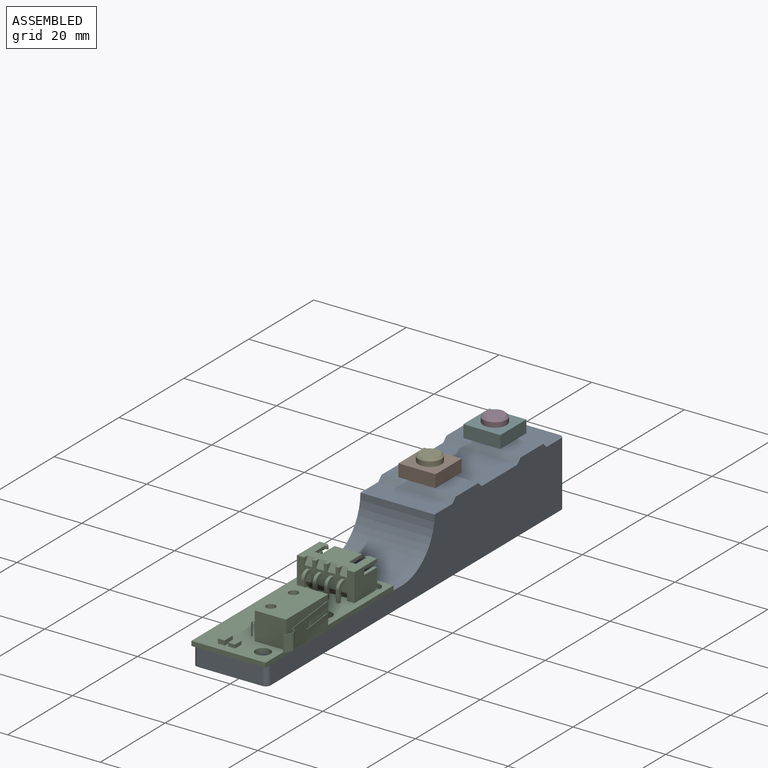
[diagram: assembled view]
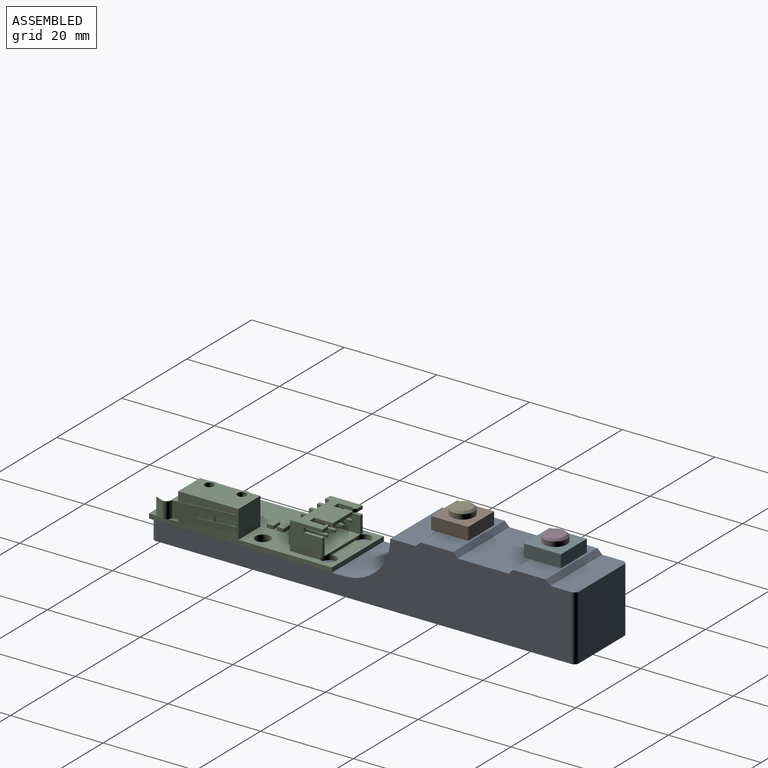
[diagram: assembled view, second angle]
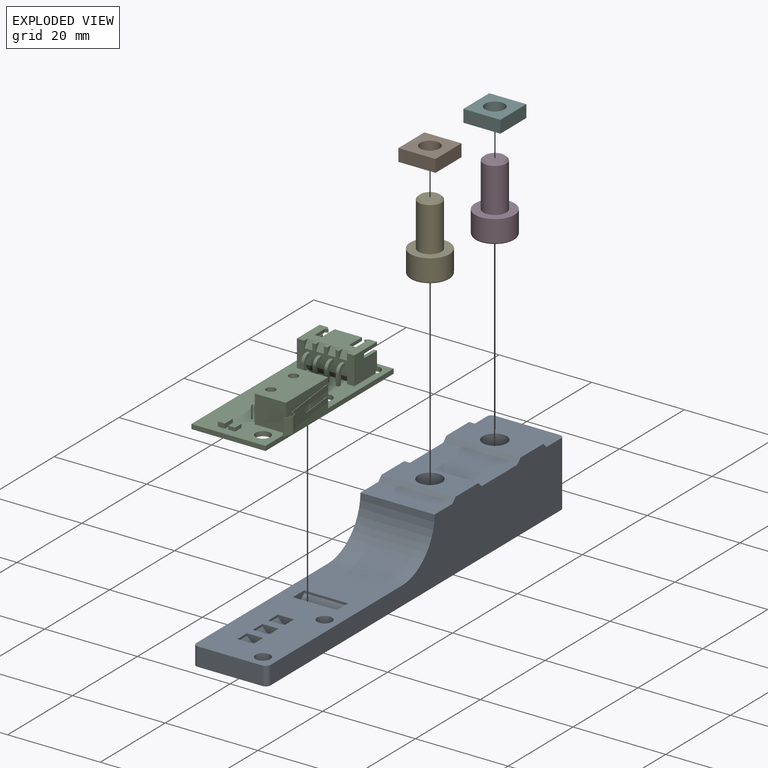
[diagram: exploded view]
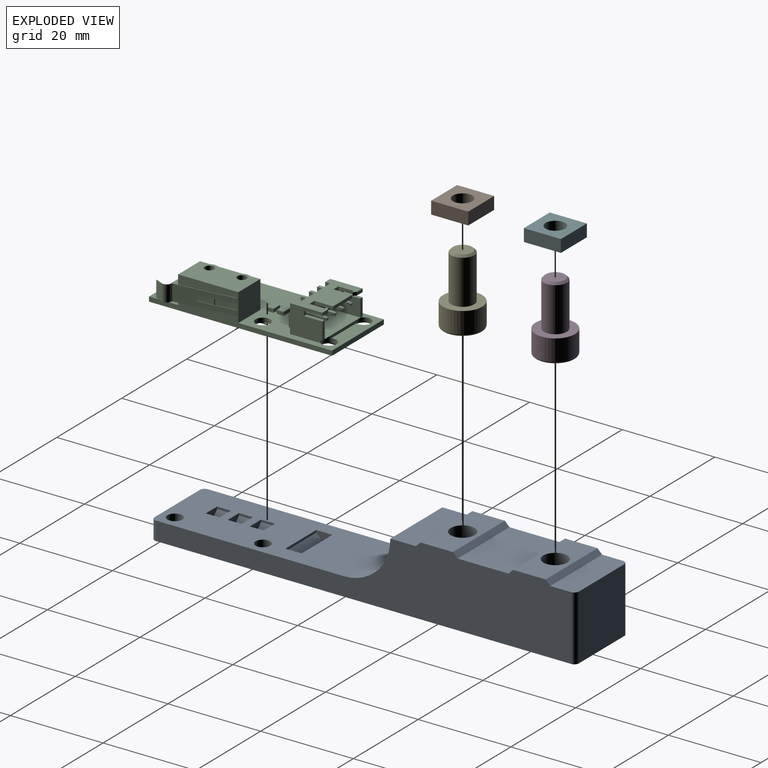
[diagram: exploded view, second angle]
ASSEMBLY  parts=6 mates=5
PART A: 58 faces, bbox 16x91.6x15 mm
  f0: plane 41.6x16mm, normal (0,0,1), area 584.3mm2, adj f3,f13,f14,f23,f24,f25,f26,f30
  f1: plane 16x1mm, normal (0,-0.71,0.71), area 22.6mm2, adj f2,f12,f13,f14
  f2: plane 16x5.5mm, normal (0,0,1), area 88mm2, adj f1,f13,f14,f57
  f3: plane 14x4mm, normal (0,-1,0), area 56mm2, adj f0,f4,f54,f56
  f4: plane 91.6x16mm, normal (0,0,-1), area 1321.4mm2, adj f3,f5,f13,f14,f19,f21,f23,f24
  f5: plane 14x14mm, normal (0,1,0), area 196mm2, adj f4,f6,f53,f55
  f6: plane 16x5.5mm, normal (0,0,1), area 87.6mm2, adj f5,f7,f13,f14,f53,f55
  f7: plane 16x1mm, normal (0,0.71,0.71), area 22.6mm2, adj f6,f8,f13,f14
  f8: plane 16x7mm, normal (0,0,1), area 90.8mm2, adj f7,f9,f13,f14,f17
  f9: plane 16x1mm, normal (0,-0.71,0.71), area 22.6mm2, adj f8,f10,f13,f14
  f10: plane 16x11mm, normal (0,0,1), area 176mm2, adj f9,f11,f13,f14
  f11: plane 16x1mm, normal (0,0.71,0.71), area 22.6mm2, adj f10,f12,f13,f14
  f12: plane 16x7mm, normal (0,0,1), area 90.8mm2, adj f1,f11,f13,f14,f15
  f13: plane 89.6x15mm, normal (1,0,0), area 785.9mm2, adj f0,f1,f2,f4,f6,f7,f8,f9
  f14: plane 89.6x15mm, normal (-1,0,0), area 785.9mm2, adj f0,f1,f2,f4,f6,f7,f8,f9
  f15: cylinder r=2.6mm len=5.2mm, axis (0,0,1), area 78.4mm2, adj f12,f16
  f16: plane 5.2x5.2mm, normal (0,0,1), area 21.2mm2, adj f15
  f17: cylinder r=2.6mm len=5.2mm, axis (0,0,1), area 78.4mm2, adj f8,f18
  f18: plane 5.2x5.2mm, normal (0,0,1), area 21.2mm2, adj f17
  f19: cylinder r=4.5mm len=10mm, axis (0,0,-1), area 282.7mm2, adj f4,f20
  f20: plane 9x9mm, normal (0,0,-1), area 63.6mm2, adj f19
  f21: cylinder r=4.5mm len=10mm, axis (0,0,-1), area 282.7mm2, adj f4,f22
  f22: plane 9x9mm, normal (0,0,-1), area 63.6mm2, adj f21
  f23: cylinder r=1.6mm len=4mm, axis (0,0,1), area 40.2mm2, adj f0,f4
  f24: cylinder r=1.6mm len=4mm, axis (0,0,1), area 40.2mm2, adj f0,f4
  f25: plane 3x0.5mm, normal (-1,0,0), area 1.5mm2, adj f0,f29,f30,f31
  f26: plane 3x0.5mm, normal (1,0,0), area 1.5mm2, adj f0,f27,f30,f31
  f27: plane 3x1mm, normal (0.71,0,0.71), area 4.2mm2, adj f26,f28,f30,f31
  f28: plane 3x1.5mm, normal (0,0,1), area 4.5mm2, adj f27,f29,f30,f31
  f29: plane 3x1mm, normal (-0.71,0,0.71), area 4.2mm2, adj f25,f28,f30,f31
  f30: plane 3.5x1.5mm, normal (0,-1,0), area 4.2mm2, adj f0,f25,f26,f27,f28,f29
  f31: plane 3.5x1.5mm, normal (0,1,0), area 4.2mm2, adj f0,f25,f26,f27,f28,f29
  f32: plane 3x0.5mm, normal (-1,0,0), area 1.5mm2, adj f0,f36,f37,f38
  f33: plane 3x0.5mm, normal (1,0,0), area 1.5mm2, adj f0,f34,f37,f38
  f34: plane 3x1mm, normal (0.71,0,0.71), area 4.2mm2, adj f33,f35,f37,f38
  f35: plane 3x1.5mm, normal (0,0,1), area 4.5mm2, adj f34,f36,f37,f38
  f36: plane 3x1mm, normal (-0.71,0,0.71), area 4.2mm2, adj f32,f35,f37,f38
  f37: plane 3.5x1.5mm, normal (0,-1,0), area 4.2mm2, adj f0,f32,f33,f34,f35,f36
  f38: plane 3.5x1.5mm, normal (0,1,0), area 4.2mm2, adj f0,f32,f33,f34,f35,f36
  f39: plane 3x0.5mm, normal (-1,0,0), area 1.5mm2, adj f0,f43,f44,f45
  f40: plane 3x0.5mm, normal (1,0,0), area 1.5mm2, adj f0,f41,f44,f45
  f41: plane 3x1mm, normal (0.71,0,0.71), area 4.2mm2, adj f40,f42,f44,f45
  f42: plane 3x1.5mm, normal (0,0,1), area 4.5mm2, adj f41,f43,f44,f45
  f43: plane 3x1mm, normal (-0.71,0,0.71), area 4.2mm2, adj f39,f42,f44,f45
  f44: plane 3.5x1.5mm, normal (0,-1,0), area 4.2mm2, adj f0,f39,f40,f41,f42,f43
  f45: plane 3.5x1.5mm, normal (0,1,0), area 4.2mm2, adj f0,f39,f40,f41,f42,f43
  f46: plane 9.5x0.5mm, normal (0,-1,0), area 4.8mm2, adj f0,f50,f51,f52
  f47: plane 9.5x0.5mm, normal (0,1,0), area 4.8mm2, adj f0,f48,f51,f52
  f48: plane 9.5x1.5mm, normal (0,0.71,0.71), area 20.2mm2, adj f47,f49,f51,f52
  f49: plane 9.5x0.5mm, normal (0,0,1), area 4.8mm2, adj f48,f50,f51,f52
  f50: plane 9.5x1.5mm, normal (0,-0.71,0.71), area 20.2mm2, adj f46,f49,f51,f52
  f51: plane 3.5x2mm, normal (1,0,0), area 4.7mm2, adj f0,f46,f47,f48,f49,f50
  f52: plane 3.5x2mm, normal (-1,0,0), area 4.7mm2, adj f0,f46,f47,f48,f49,f50
  f53: cylinder r=1mm len=14mm, axis (0,0,1), area 22mm2, adj f4,f5,f6,f14
  f54: cylinder r=1mm len=4mm, axis (0,0,-1), area 6.3mm2, adj f0,f3,f4,f14
  f55: cylinder r=1mm len=14mm, axis (0,0,-1), area 22mm2, adj f4,f5,f6,f13
  f56: cylinder r=1mm len=4mm, axis (0,0,1), area 6.3mm2, adj f0,f3,f4,f13
  f57: cylinder r=10mm len=16mm, axis (1,0,0), area 251.3mm2, adj f0,f2,f13,f14
PART B: 7 faces, bbox 8x8x2.7 mm
  f0: plane 8x2.7mm, normal (0,-1,0), area 21.6mm2, adj f1,f4,f5,f6
  f1: plane 8x2.7mm, normal (1,0,0), area 21.6mm2, adj f0,f2,f5,f6
  f2: plane 8x2.7mm, normal (0,1,0), area 21.6mm2, adj f1,f4,f5,f6
  f3: cylinder r=2.1mm len=4.2mm, axis (0,0,-1), area 35.6mm2, adj f5,f6
  f4: plane 8x2.7mm, normal (-1,0,0), area 21.6mm2, adj f0,f2,f5,f6
  f5: plane 8x8mm, normal (0,0,1), area 50.1mm2, adj f0,f1,f2,f3,f4
  f6: plane 8x8mm, normal (0,0,-1), area 50.1mm2, adj f0,f1,f2,f3,f4
PART C: 229 faces, bbox 39.5x18.6x8 mm
  f0: plane 3x1.73mm, normal (-1,0,0), area 0.4mm2, adj f2,f3,f17,f23,f24,f25,f26,f191
  f1: plane 3x1.73mm, normal (1,0,0), area 0.4mm2, adj f2,f3,f17,f23,f24,f25,f26,f191
  f2: plane 2.5x0.35mm, normal (0,1,0), area 0.9mm2, adj f0,f1,f24,f191
  f3: plane 2.5x0.35mm, normal (0,-1,0), area 0.9mm2, adj f0,f1,f25,f191
  f4: plane 2.5x0.35mm, normal (0,1,0), area 0.9mm2, adj f6,f7,f27,f191
  f5: plane 2.5x0.35mm, normal (0,-1,0), area 0.9mm2, adj f6,f7,f28,f191
  f6: plane 3x1.73mm, normal (1,0,0), area 0.4mm2, adj f4,f5,f18,f20,f27,f28,f29,f191
  f7: plane 3x1.73mm, normal (-1,0,0), area 0.4mm2, adj f4,f5,f18,f20,f27,f28,f29,f191
  f8: plane 2.5x0.35mm, normal (0,1,0), area 0.9mm2, adj f10,f11,f31,f191
  f9: plane 2.5x0.35mm, normal (0,-1,0), area 0.9mm2, adj f10,f11,f32,f191
  f10: plane 3x1.73mm, normal (1,0,0), area 0.4mm2, adj f8,f9,f19,f30,f31,f32,f33,f191
  f11: plane 3x1.73mm, normal (-1,0,0), area 0.4mm2, adj f8,f9,f19,f30,f31,f32,f33,f191
  f12: cylinder r=1mm len=6mm, axis (0,0,1), area 37.7mm2, adj f16,f208
  f13: cylinder r=1mm len=6mm, axis (0,0,1), area 37.7mm2, adj f16,f207
  f14: cylinder r=1.6mm len=6mm, axis (0,0,1), area 10.3mm2, adj f16,f17,f20,f191
  f15: cylinder r=1.6mm len=6mm, axis (0,0,1), area 10.3mm2, adj f16,f19,f20,f191
  f16: plane 13x6.98mm, normal (0,0,-1), area 82mm2, adj f12,f13,f14,f15,f17,f19,f20,f21
  f17: plane 6x2.18mm, normal (0,-1,0), area 13.1mm2, adj f0,f1,f14,f16,f21,f23,f26,f191
  f18: plane 1.23x0.35mm, normal (0,0,1), area 0.4mm2, adj f6,f7,f20,f27
  f19: plane 6x2.18mm, normal (0,-1,0), area 13.1mm2, adj f10,f11,f15,f16,f22,f30,f33,f191
  f20: plane 6x5.36mm, normal (0,-1,0), area 32.1mm2, adj f6,f7,f14,f15,f16,f18,f29,f191
  f21: plane 6.75x6mm, normal (1,0,0), area 40.5mm2, adj f16,f17,f174,f191
  f22: plane 6.75x6mm, normal (-1,0,0), area 40.5mm2, adj f16,f19,f174,f191
  f23: plane 1.23x0.35mm, normal (0,0,1), area 0.4mm2, adj f0,f1,f17,f24
  f24: cylinder r=0.4mm len=0.4mm, axis (1,0,0), area 0.2mm2, adj f0,f1,f2,f23
  f25: cylinder r=0.5mm len=0.5mm, axis (1,0,0), area 0.3mm2, adj f0,f1,f3,f26
  f26: plane 1.23x0.35mm, normal (0,0,-1), area 0.4mm2, adj f0,f1,f17,f25
  f27: cylinder r=0.4mm len=0.4mm, axis (1,0,0), area 0.2mm2, adj f4,f6,f7,f18
  f28: cylinder r=0.5mm len=0.5mm, axis (1,0,0), area 0.3mm2, adj f5,f6,f7,f29
  f29: plane 1.23x0.35mm, normal (0,0,-1), area 0.4mm2, adj f6,f7,f20,f28
  f30: plane 1.23x0.35mm, normal (0,0,1), area 0.4mm2, adj f10,f11,f19,f31
  f31: cylinder r=0.4mm len=0.4mm, axis (1,0,0), area 0.2mm2, adj f8,f10,f11,f30
  f32: cylinder r=0.5mm len=0.5mm, axis (1,0,0), area 0.3mm2, adj f9,f10,f11,f33
  f33: plane 1.23x0.35mm, normal (0,0,-1), area 0.4mm2, adj f10,f11,f19,f32
  f34: plane 2.5x0.4mm, normal (1,0,0), area 1mm2, adj f35,f37,f38,f174
  f35: plane 2.5x1mm, normal (0,1,0), area 2.5mm2, adj f34,f36,f37,f38
  f36: plane 2.5x0.4mm, normal (-1,0,0), area 1mm2, adj f35,f37,f38,f174
  f37: plane 1x0.4mm, normal (0,0,-1), area 0.4mm2, adj f34,f35,f36,f174
  f38: plane 1x0.4mm, normal (0,0,1), area 0.4mm2, adj f34,f35,f36,f174
  f39: plane 2x1.5mm, normal (0,0,-1), area 3mm2, adj f40,f41,f42,f43
  f40: plane 1.5x0.76mm, normal (0,1,0), area 1.1mm2, adj f39,f41,f43,f191
  f41: plane 2x0.76mm, normal (1,0,0), area 1.5mm2, adj f39,f40,f42,f191
  f42: plane 1.5x0.76mm, normal (0,-1,0), area 1.1mm2, adj f39,f41,f43,f191
  f43: plane 2x0.76mm, normal (-1,0,0), area 1.5mm2, adj f39,f40,f42,f191
  f44: plane 0.64x0.57mm, normal (0.17,0,0.98), area 0.3mm2, adj f45,f46,f48,f52
  f45: plane 0.64x0.57mm, normal (0.17,0.98,0), area 0.3mm2, adj f44,f47,f48,f49
  f46: plane 0.64x0.57mm, normal (0.17,-0.98,0), area 0.3mm2, adj f44,f47,f48,f51
  f47: plane 0.64x0.57mm, normal (0.17,0,-0.98), area 0.3mm2, adj f45,f46,f48,f50
  f48: plane 0.44x0.44mm, normal (1,0,0), area 0.2mm2, adj f44,f45,f46,f47
  f49: plane 5.08x0.64mm, normal (0,1,0), area 3.2mm2, adj f45,f50,f52,f68
  f50: plane 5.08x0.64mm, normal (0,0,-1), area 3.2mm2, adj f47,f49,f51,f68
  f51: plane 5.08x0.64mm, normal (0,-1,0), area 3.2mm2, adj f46,f50,f52,f68
  f52: plane 5.08x0.64mm, normal (0,0,1), area 3.2mm2, adj f44,f49,f51,f68
  f53: cylinder r=0.05mm len=0.7mm, axis (0,0,1), area 0.1mm2, adj f64,f66,f80,f81
  f54: cylinder r=0.05mm len=0.7mm, axis (0,0,1), area 0.1mm2, adj f64,f66,f85,f86
  f55: plane 0.64x0.35mm, normal (0,0,1), area 0.2mm2, adj f70,f121,f131,f154
  f56: plane 0.64x0.35mm, normal (0,0,1), area 0.2mm2, adj f74,f125,f132,f155
  f57: plane 0.64x0.35mm, normal (0,0,1), area 0.2mm2, adj f76,f124,f133,f156
  f58: plane 2.02x1.03mm, normal (0,0,1), area 1.6mm2, adj f134,f135,f176
  f59: plane 2.77x1.03mm, normal (0,0,1), area 2.2mm2, adj f135,f136,f177
  f60: plane 1.75x0.7mm, normal (1,0,0), area 1.2mm2, adj f64,f66,f81,f136
  f61: plane 1.75x0.7mm, normal (1,0,0), area 1.2mm2, adj f64,f66,f86,f134
  f62: plane 6.3x4.7mm, normal (0,1,0), area 25.6mm2, adj f66,f67,f68,f119,f120,f135
  f63: plane 6.3x4.7mm, normal (0,-1,0), area 25.6mm2, adj f66,f67,f68,f117,f118,f135
  f64: plane 12.4x7mm, normal (0,0,-1), area 67.6mm2, adj f53,f54,f60,f61,f65,f69,f71,f73
  f65: plane 5.9x0.7mm, normal (1,0,0), area 4.1mm2, adj f64,f66,f77,f82
  f66: plane 12.4x6.3mm, normal (0,0,1), area 63.4mm2, adj f53,f54,f60,f61,f62,f63,f65,f68
  f67: plane 11x6.3mm, normal (0,0,-1), area 69.3mm2, adj f62,f63,f68,f135
  f68: plane 11x4.7mm, normal (1,0,0), area 50.1mm2, adj f49,f50,f51,f52,f62,f63,f66,f67
  f69: plane 1.75x1.5mm, normal (-0.83,0,-0.55), area 3.2mm2, adj f64,f70,f143,f144
  f70: plane 3.1x1.75mm, normal (-1,0,0), area 5mm2, adj f55,f69,f87,f131,f142,f143,f144,f154
  f71: plane 1.75x1.5mm, normal (-0.83,0,-0.55), area 3.2mm2, adj f64,f72,f146,f147
  f72: plane 3.1x1.75mm, normal (-1,0,0), area 5mm2, adj f71,f129,f130,f145,f146,f147,f164,f165
  f73: plane 1.75x1.5mm, normal (-0.83,0,-0.55), area 3.2mm2, adj f64,f74,f149,f150
  f74: plane 3.1x1.75mm, normal (-1,0,0), area 5mm2, adj f56,f73,f97,f132,f148,f149,f150,f155
  f75: plane 1.75x1.5mm, normal (-0.83,0,-0.55), area 3.2mm2, adj f64,f76,f152,f153
  f76: plane 3.1x1.75mm, normal (-1,0,0), area 5mm2, adj f57,f75,f103,f133,f151,f152,f153,f156
  f77: plane 4x0.7mm, normal (0,1,0), area 2.8mm2, adj f64,f65,f66,f78
  f78: plane 1.5x0.7mm, normal (1,0,0), area 1mm2, adj f64,f66,f77,f79
  f79: plane 3.18x0.7mm, normal (0,-1,0), area 2.2mm2, adj f64,f66,f78,f80
  f80: plane 0.7x0.53mm, normal (-0.94,-0.34,0), area 0.4mm2, adj f53,f64,f66,f79
  f81: plane 0.7x0.54mm, normal (0.71,-0.71,0), area 0.5mm2, adj f53,f60,f64,f66
  f82: plane 4x0.7mm, normal (0,-1,0), area 2.8mm2, adj f64,f65,f66,f83
  f83: plane 1.5x0.7mm, normal (1,0,0), area 1mm2, adj f64,f66,f82,f84
  f84: plane 3.18x0.7mm, normal (0,1,0), area 2.2mm2, adj f64,f66,f83,f85
  f85: plane 0.7x0.53mm, normal (-0.94,0.34,0), area 0.4mm2, adj f54,f64,f66,f84
  f86: plane 0.7x0.54mm, normal (0.71,0.71,0), area 0.5mm2, adj f54,f61,f64,f66
  f87: plane 0.64x0.35mm, normal (0,0,-1), area 0.2mm2, adj f70,f122,f131,f154
  f88: plane 5.08x0.64mm, normal (0,-1,0), area 3.2mm2, adj f68,f89,f91,f94
  f89: plane 5.08x0.64mm, normal (0,0,-1), area 3.2mm2, adj f68,f88,f90,f93
  f90: plane 5.08x0.64mm, normal (0,1,0), area 3.2mm2, adj f68,f89,f91,f95
  f91: plane 5.08x0.64mm, normal (0,0,1), area 3.2mm2, adj f68,f88,f90,f96
  f92: plane 0.44x0.44mm, normal (1,0,0), area 0.2mm2, adj f93,f94,f95,f96
  f93: plane 0.64x0.57mm, normal (0.17,0,-0.98), area 0.3mm2, adj f89,f92,f94,f95
  f94: plane 0.64x0.57mm, normal (0.17,-0.98,0), area 0.3mm2, adj f88,f92,f93,f96
  f95: plane 0.64x0.57mm, normal (0.17,0.98,0), area 0.3mm2, adj f90,f92,f93,f96
  f96: plane 0.64x0.57mm, normal (0.17,0,0.98), area 0.3mm2, adj f91,f92,f94,f95
  f97: plane 0.64x0.35mm, normal (0,0,-1), area 0.2mm2, adj f74,f126,f132,f155
  f98: plane 5.08x0.64mm, normal (0,-1,0), area 3.2mm2, adj f68,f99,f101,f110
  f99: plane 5.08x0.64mm, normal (0,0,-1), area 3.2mm2, adj f68,f98,f100,f109
  f100: plane 5.08x0.64mm, normal (0,1,0), area 3.2mm2, adj f68,f99,f101,f111
  f101: plane 5.08x0.64mm, normal (0,0,1), area 3.2mm2, adj f68,f98,f100,f112
  f102: plane 0.44x0.44mm, normal (1,0,0), area 0.2mm2, adj f109,f110,f111,f112
  f103: plane 0.64x0.35mm, normal (0,0,-1), area 0.2mm2, adj f76,f123,f133,f156
  f104: plane 5.08x0.64mm, normal (0,-1,0), area 3.2mm2, adj f68,f105,f107,f114
  f105: plane 5.08x0.64mm, normal (0,0,-1), area 3.2mm2, adj f68,f104,f106,f113
  f106: plane 5.08x0.64mm, normal (0,1,0), area 3.2mm2, adj f68,f105,f107,f115
  f107: plane 5.08x0.64mm, normal (0,0,1), area 3.2mm2, adj f68,f104,f106,f116
  f108: plane 0.44x0.44mm, normal (1,0,0), area 0.2mm2, adj f113,f114,f115,f116
  f109: plane 0.64x0.57mm, normal (0.17,0,-0.98), area 0.3mm2, adj f99,f102,f110,f111
  f110: plane 0.64x0.57mm, normal (0.17,-0.98,0), area 0.3mm2, adj f98,f102,f109,f112
  f111: plane 0.64x0.57mm, normal (0.17,0.98,0), area 0.3mm2, adj f100,f102,f109,f112
  f112: plane 0.64x0.57mm, normal (0.17,0,0.98), area 0.3mm2, adj f101,f102,f110,f111
  f113: plane 0.64x0.57mm, normal (0.17,0,-0.98), area 0.3mm2, adj f105,f108,f114,f115
  f114: plane 0.64x0.57mm, normal (0.17,-0.98,0), area 0.3mm2, adj f104,f108,f113,f116
  f115: plane 0.64x0.57mm, normal (0.17,0.98,0), area 0.3mm2, adj f106,f108,f113,f116
  f116: plane 0.64x0.57mm, normal (0.17,0,0.98), area 0.3mm2, adj f107,f108,f114,f115
  f117: plane 4x0.7mm, normal (0,0,-1), area 2.8mm2, adj f63,f118,f135,f136
  f118: plane 1x0.7mm, normal (1,0,0), area 0.7mm2, adj f63,f66,f117,f136
  f119: plane 1x0.7mm, normal (1,0,0), area 0.7mm2, adj f62,f66,f120,f134
  f120: plane 4x0.7mm, normal (0,0,-1), area 2.8mm2, adj f62,f119,f134,f135
  f121: cylinder r=0.86mm len=0.87mm, axis (0,1,0), area 0.9mm2, adj f55,f131,f154,f158
  f122: cylinder r=1.5mm len=1.5mm, axis (0,1,0), area 1.5mm2, adj f87,f131,f154,f157
  f123: cylinder r=1.5mm len=1.5mm, axis (0,1,0), area 1.5mm2, adj f103,f133,f156,f159
  f124: cylinder r=0.86mm len=0.87mm, axis (0,1,0), area 0.9mm2, adj f57,f133,f156,f160
  f125: cylinder r=0.86mm len=0.87mm, axis (0,1,0), area 0.9mm2, adj f56,f132,f155,f162
  f126: cylinder r=1.5mm len=1.5mm, axis (0,1,0), area 1.5mm2, adj f97,f132,f155,f161
  f127: cylinder r=0.86mm len=0.87mm, axis (0,1,0), area 0.9mm2, adj f129,f163,f164,f165
  f128: cylinder r=1.5mm len=1.5mm, axis (0,1,0), area 1.5mm2, adj f130,f164,f165,f166
  f129: plane 0.64x0.35mm, normal (0,0,1), area 0.2mm2, adj f72,f127,f164,f165
  f130: plane 0.64x0.35mm, normal (0,0,-1), area 0.2mm2, adj f72,f128,f164,f165
  f131: plane 3.99x1.85mm, normal (0,1,0), area 3mm2, adj f55,f70,f87,f121,f122,f157,f158,f191
  f132: plane 3.99x1.85mm, normal (0,1,0), area 3mm2, adj f56,f74,f97,f125,f126,f161,f162,f191
  f133: plane 3.99x1.85mm, normal (0,1,0), area 3mm2, adj f57,f76,f103,f123,f124,f159,f160,f191
  f134: plane 7x6.02mm, normal (0,-1,0), area 37.6mm2, adj f58,f61,f64,f66,f119,f120,f135,f139
  f135: plane 12.4x4.32mm, normal (1,0,0), area 10.1mm2, adj f58,f59,f62,f63,f67,f117,f120,f134
  f136: plane 7x6.02mm, normal (0,1,0), area 37.9mm2, adj f59,f60,f64,f66,f117,f118,f135,f141
  f137: plane 6.02x0.75mm, normal (-1,0,0), area 4.5mm2, adj f64,f150,f152,f191
  f138: plane 6.02x0.75mm, normal (-1,0,0), area 4.5mm2, adj f64,f144,f149,f191
  f139: plane 6.02x1.58mm, normal (-1,0,0), area 9.5mm2, adj f64,f134,f146,f191
  f140: plane 6.02x0.75mm, normal (-1,0,0), area 4.5mm2, adj f64,f143,f147,f191
  f141: plane 6.02x1.58mm, normal (-1,0,0), area 9.5mm2, adj f64,f136,f153,f191
  f142: plane 1.75x1.42mm, normal (-0.83,0,0.55), area 3mm2, adj f70,f143,f144,f191
  f143: plane 6.02x1.1mm, normal (0,1,0), area 2mm2, adj f64,f69,f70,f140,f142,f191
  f144: plane 6.02x1.1mm, normal (0,-1,0), area 2mm2, adj f64,f69,f70,f138,f142,f191
  f145: plane 1.75x1.42mm, normal (-0.83,0,0.55), area 3mm2, adj f72,f146,f147,f191
  f146: plane 6.02x1.1mm, normal (0,1,0), area 2mm2, adj f64,f71,f72,f139,f145,f191
  f147: plane 6.02x1.1mm, normal (0,-1,0), area 2mm2, adj f64,f71,f72,f140,f145,f191
  f148: plane 1.75x1.42mm, normal (-0.83,0,0.55), area 3mm2, adj f74,f149,f150,f191
  f149: plane 6.02x1.1mm, normal (0,1,0), area 2mm2, adj f64,f73,f74,f138,f148,f191
  f150: plane 6.02x1.1mm, normal (0,-1,0), area 2mm2, adj f64,f73,f74,f137,f148,f191
  f151: plane 1.75x1.42mm, normal (-0.83,0,0.55), area 3mm2, adj f76,f152,f153,f191
  f152: plane 6.02x1.1mm, normal (0,1,0), area 2mm2, adj f64,f75,f76,f137,f151,f191
  f153: plane 6.02x1.1mm, normal (0,-1,0), area 2mm2, adj f64,f75,f76,f141,f151,f191
  f154: plane 3.99x1.85mm, normal (0,-1,0), area 3mm2, adj f55,f70,f87,f121,f122,f157,f158,f191
  f155: plane 3.99x1.85mm, normal (0,-1,0), area 3mm2, adj f56,f74,f97,f125,f126,f161,f162,f191
  f156: plane 3.99x1.85mm, normal (0,-1,0), area 3mm2, adj f57,f76,f103,f123,f124,f159,f160,f191
  f157: plane 2.49x0.64mm, normal (-1,0,0), area 1.6mm2, adj f122,f131,f154,f191
  f158: plane 2.49x0.64mm, normal (1,0,0), area 1.6mm2, adj f121,f131,f154,f191
  f159: plane 2.49x0.64mm, normal (-1,0,0), area 1.6mm2, adj f123,f133,f156,f191
  f160: plane 2.49x0.64mm, normal (1,0,0), area 1.6mm2, adj f124,f133,f156,f191
  f161: plane 2.49x0.64mm, normal (-1,0,0), area 1.6mm2, adj f126,f132,f155,f191
  f162: plane 2.49x0.64mm, normal (1,0,0), area 1.6mm2, adj f125,f132,f155,f191
  f163: plane 2.49x0.64mm, normal (1,0,0), area 1.6mm2, adj f127,f164,f165,f191
  f164: plane 3.99x1.85mm, normal (0,-1,0), area 3mm2, adj f72,f127,f128,f129,f130,f163,f166,f191
  f165: plane 3.99x1.85mm, normal (0,1,0), area 3mm2, adj f72,f127,f128,f129,f130,f163,f166,f191
  f166: plane 2.49x0.64mm, normal (-1,0,0), area 1.6mm2, adj f128,f164,f165,f191
  f167: plane 2x1.5mm, normal (0,0,-1), area 3mm2, adj f168,f169,f170,f171
  f168: plane 2x0.76mm, normal (0,1,0), area 1.5mm2, adj f167,f169,f171,f191
  f169: plane 1.5x0.76mm, normal (1,0,0), area 1.1mm2, adj f167,f168,f170,f191
  f170: plane 2x0.76mm, normal (0,-1,0), area 1.5mm2, adj f167,f169,f171,f191
  f171: plane 1.5x0.76mm, normal (-1,0,0), area 1.1mm2, adj f167,f168,f170,f191
  f172: plane 16x1mm, normal (1,0,0), area 16mm2, adj f174,f175,f190,f191
  f173: plane 16x1mm, normal (-1,0,0), area 16mm2, adj f174,f175,f190,f191
  f174: plane 39.5x7mm, normal (0,1,0), area 112mm2, adj f16,f21,f22,f34,f36,f37,f38,f172
  f175: plane 39.5x1mm, normal (0,-1,0), area 39.5mm2, adj f172,f173,f190,f191
  f176: cylinder r=1.6mm len=3.2mm, axis (0,0,1), area 11.5mm2, adj f58,f134,f135,f190,f191
  f177: cylinder r=1.6mm len=3.2mm, axis (0,0,1), area 12mm2, adj f59,f135,f136,f190,f191
  f178: cylinder r=1.6mm len=3.2mm, axis (0,0,1), area 10.1mm2, adj f190,f191
  f179: cylinder r=1.6mm len=3.2mm, axis (0,0,1), area 10.1mm2, adj f190,f191
  f180: plane 2x1.5mm, normal (0,0,-1), area 3mm2, adj f181,f182,f183,f184
  f181: plane 1.5x0.76mm, normal (0,1,0), area 1.1mm2, adj f180,f182,f184,f191
  f182: plane 2x0.76mm, normal (1,0,0), area 1.5mm2, adj f180,f181,f183,f191
  f183: plane 1.5x0.76mm, normal (0,-1,0), area 1.1mm2, adj f180,f182,f184,f191
  f184: plane 2x0.76mm, normal (-1,0,0), area 1.5mm2, adj f180,f181,f183,f191
  f185: plane 2.5x1.5mm, normal (0,0,-1), area 3.7mm2, adj f186,f187,f188,f189
  f186: plane 1.5x1mm, normal (-1,0,0), area 1.5mm2, adj f185,f187,f189,f191
  f187: plane 2.5x1mm, normal (0,1,0), area 2.5mm2, adj f185,f186,f188,f191
  f188: plane 1.5x1mm, normal (1,0,0), area 1.5mm2, adj f185,f187,f189,f191
  f189: plane 2.5x1mm, normal (0,-1,0), area 2.5mm2, adj f185,f186,f188,f191
  f190: plane 39.5x16mm, normal (0,0,1), area 599.7mm2, adj f172,f173,f174,f175,f176,f177,f178,f179
  f191: plane 39.5x16mm, normal (0,0,-1), area 421.5mm2, adj f0,f1,f2,f3,f4,f5,f6,f7
  f192: plane 0.35x0.1mm, normal (0,0,1), area 0mm2, adj f193,f194,f195,f196
  f193: plane 1x0.1mm, normal (1,0,0), area 0.1mm2, adj f190,f192,f195,f196
  f194: plane 1x0.1mm, normal (-1,0,0), area 0.1mm2, adj f190,f192,f195,f196
  f195: plane 1x0.35mm, normal (0,-1,0), area 0.4mm2, adj f190,f192,f193,f194
  f196: plane 1x0.35mm, normal (0,1,0), area 0.4mm2, adj f190,f192,f193,f194
  f197: plane 0.35x0.1mm, normal (0,0,1), area 0mm2, adj f198,f199,f200,f201
  f198: plane 1x0.1mm, normal (1,0,0), area 0.1mm2, adj f190,f197,f200,f201
  f199: plane 1x0.1mm, normal (-1,0,0), area 0.1mm2, adj f190,f197,f200,f201
  f200: plane 1x0.35mm, normal (0,-1,0), area 0.4mm2, adj f190,f197,f198,f199
  f201: plane 1x0.35mm, normal (0,1,0), area 0.4mm2, adj f190,f197,f198,f199
  f202: plane 0.35x0.1mm, normal (0,0,1), area 0mm2, adj f203,f204,f205,f206
  f203: plane 1x0.35mm, normal (0,1,0), area 0.3mm2, adj f190,f202,f205,f206
  f204: plane 1x0.35mm, normal (0,-1,0), area 0.3mm2, adj f190,f202,f205,f206
  f205: plane 1x0.1mm, normal (1,0,0), area 0.1mm2, adj f190,f202,f203,f204
  f206: plane 1x0.1mm, normal (-1,0,0), area 0.1mm2, adj f190,f202,f203,f204
  f207: plane 2x2mm, normal (0,0,-1), area 3.1mm2, adj f13
  f208: plane 2x2mm, normal (0,0,-1), area 3.1mm2, adj f12
  f209: plane 7.37x0.92mm, normal (0,0,1), area 0.8mm2, adj f174,f212,f213,f217,f226,f227
  f210: cylinder r=1mm len=3.5mm, axis (0,0,-1), area 6.7mm2, adj f215,f216,f221,f222
  f211: cylinder r=1.1mm len=3.5mm, axis (0,0,-1), area 7.4mm2, adj f215,f216,f218,f219
  f212: cylinder r=0.6mm len=1.2mm, axis (-0.11,-0.99,0), area 0.2mm2, adj f209,f213,f214,f217
  f213: plane 11.75x3.5mm, normal (-0.11,-0.99,0), area 33.1mm2, adj f209,f212,f214,f215,f216,f222,f223,f226
  f214: plane 7.67x0.92mm, normal (0,0,-1), area 0.8mm2, adj f174,f212,f213,f217,f223,f225
  f215: plane 15.95x2.65mm, normal (0,0,1), area 1.7mm2, adj f174,f210,f211,f213,f217,f218,f219,f220
  f216: plane 16.23x2.65mm, normal (0,0,-1), area 1.8mm2, adj f174,f210,f211,f213,f217,f218,f219,f220
  f217: plane 13.05x3.5mm, normal (0.11,0.99,0), area 36.1mm2, adj f209,f212,f214,f215,f216,f218,f224,f225
  f218: cylinder r=0.1mm len=3.5mm, axis (0,0,-1), area 0.5mm2, adj f211,f215,f216,f217
  f219: plane 3.5x1.59mm, normal (-0.4,0.92,0), area 6.1mm2, adj f211,f215,f216,f220
  f220: plane 3.5x0.09mm, normal (-0.92,-0.4,0), area 0.4mm2, adj f215,f216,f219,f221
  f221: plane 3.5x1.59mm, normal (0.4,-0.92,0), area 6.1mm2, adj f210,f215,f216,f220
  f222: cylinder r=0.2mm len=3.5mm, axis (0,0,-1), area 1mm2, adj f210,f213,f215,f216
  f223: plane 1.15x0.11mm, normal (-1,0,0.01), area 0.1mm2, adj f174,f213,f214,f215
  f224: plane 0.31x0.1mm, normal (0.01,0,1), area 0mm2, adj f174,f215,f217,f225
  f225: plane 1.15x0.07mm, normal (1,0,-0.01), area 0.1mm2, adj f174,f214,f217,f224
  f226: plane 1.15x0.11mm, normal (-1,0,0), area 0.1mm2, adj f174,f209,f213,f216
  f227: plane 0.3x0.1mm, normal (0.01,0,1), area 0mm2, adj f174,f209,f217,f228
  f228: plane 1.15x0.07mm, normal (1,0,-0.01), area 0.1mm2, adj f174,f216,f217,f227
PART D: 14 faces, bbox 9.2x9.2x15 mm
  f0: plane 7.65x7.65mm, normal (0,0,-1), area 31.4mm2, adj f3,f4,f5,f6,f7,f8,f9
  f1: cylinder r=4.25mm len=8.5mm, axis (0,0,1), area 122.2mm2, adj f2,f3
  f2: plane 8.5x8.5mm, normal (0,0,1), area 37.1mm2, adj f1,f11
  f3: torus R=3.82mm, axis (0,0,-1), area 17.2mm2, adj f0,f1
  f4: plane 2.5x2.36mm, normal (-1,0,0), area 5.9mm2, adj f0,f5,f9,f10
  f5: plane 2.5x2.05mm, normal (-0.5,-0.87,0), area 5.9mm2, adj f0,f4,f6,f10
  f6: plane 2.5x2.05mm, normal (0.5,-0.87,0), area 5.9mm2, adj f0,f5,f7,f10
  f7: plane 2.5x2.36mm, normal (1,0,0), area 5.9mm2, adj f0,f6,f8,f10
  f8: plane 2.5x2.05mm, normal (0.5,0.87,0), area 5.9mm2, adj f0,f7,f9,f10
  f9: plane 2.5x2.05mm, normal (-0.5,0.87,0), area 5.9mm2, adj f0,f4,f8,f10
  f10: plane 4.73x4.1mm, normal (0,0,-1), area 14.5mm2, adj f4,f5,f6,f7,f8,f9
  f11: cylinder r=2.5mm len=9.57mm, axis (0,0,-1), area 150.3mm2, adj f2,f13
  f12: plane 4.13x4.13mm, normal (0,0,1), area 13.4mm2, adj f13
  f13: cone r=2.07mm half-angle=45deg, axis (0,0,-1), area 8.8mm2, adj f11,f12
PART E: same geometry as D
PART F: same geometry as B
PLACE A at identity fixed
PLACE B rot(axis=(1,0,0),0deg) t=(0,61.6,15.8)mm
PLACE C rot(axis=(-0.71,-0.71,0),180deg) t=(0,18.25,4)mm
PLACE D t=(0,81.6,10)mm
PLACE E rot(axis=(0,0,-1),90deg) t=(0,61.6,10)mm
PLACE F t=(0,81.6,15.8)mm
MATE fastened D.f1 <-> A.f19  axis (0,0,1) through (0,81.6,10)mm
MATE fastened C.f178 <-> A.f23  axis (0,0,-1) through (5,22,4)mm
MATE fastened F.f3 <-> D.f1  axis (0,0,1) through (0,81.6,18.5)mm
MATE fastened E.f1 <-> A.f21  axis (0,0,1) through (0,61.6,10)mm
MATE fastened B.f3 <-> E.f1  axis (0,0,1) through (0,61.6,18.5)mm
